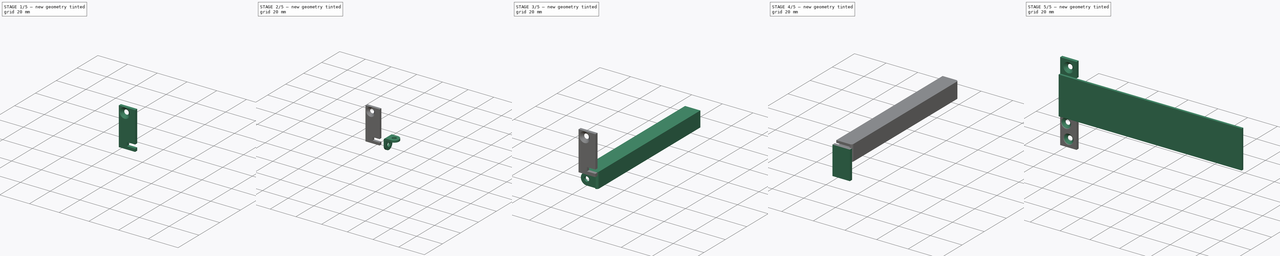
[diagram: build sequence overview — one tinted view per stage of 5, left to right]
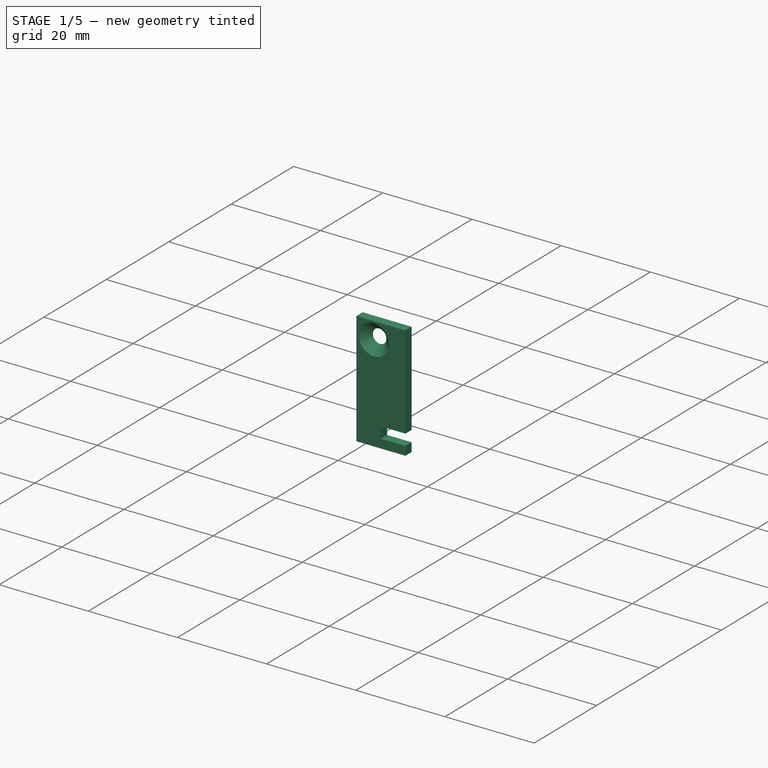
[diagram: stage 1 of 5 — iso view after this stage's code; geometry added in this stage tinted green]
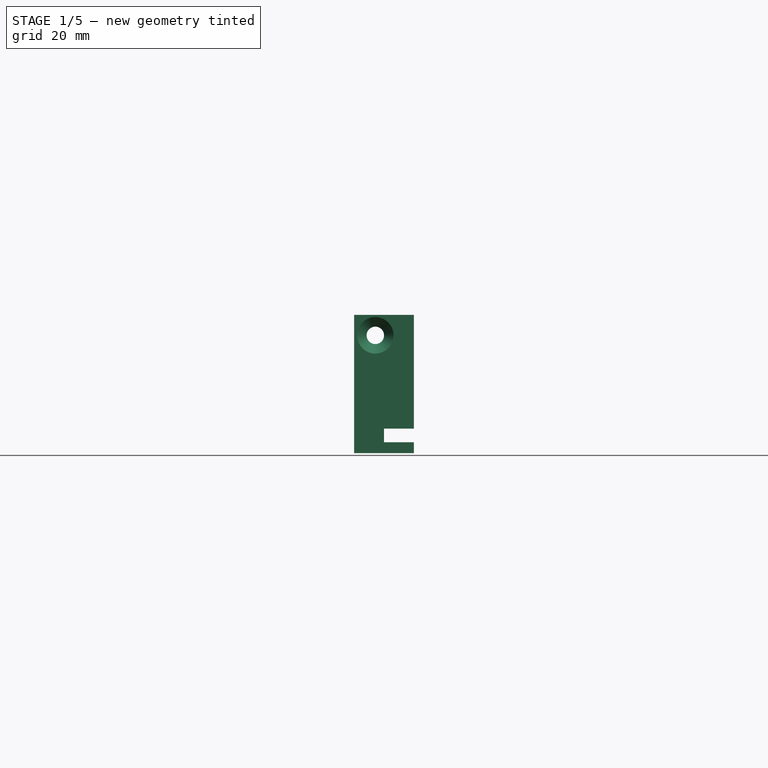
[diagram: stage 1 of 5 — front view after this stage's code; geometry added in this stage tinted green]
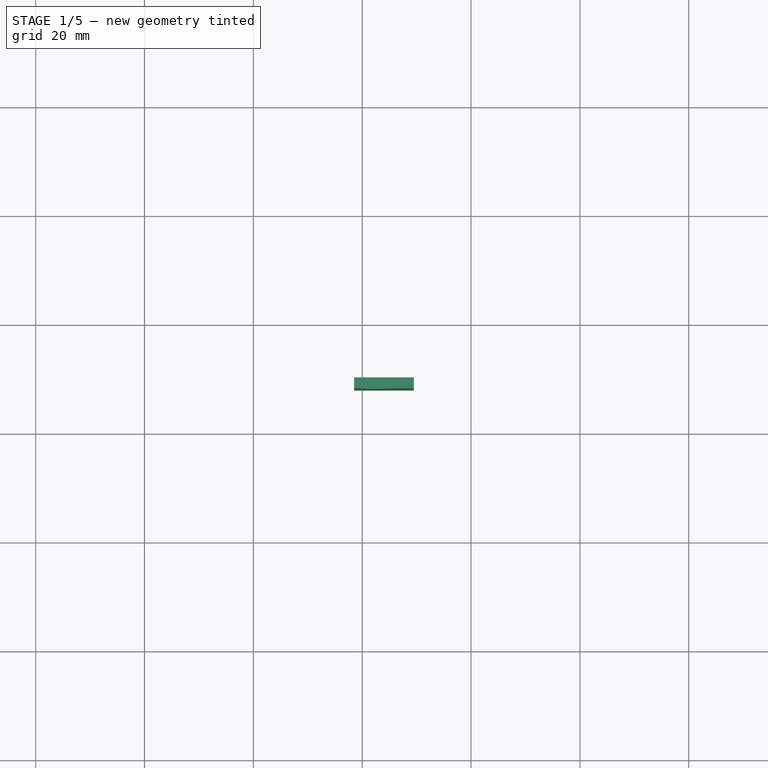
[diagram: stage 1 of 5 — top view after this stage's code; geometry added in this stage tinted green]
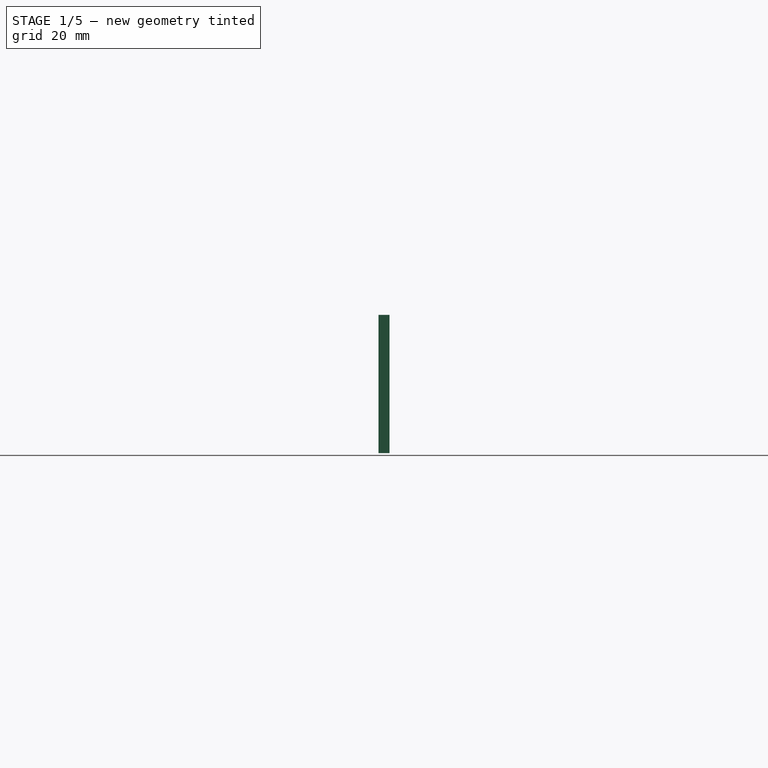
[diagram: stage 1 of 5 — right view after this stage's code; geometry added in this stage tinted green]
FCSTD DOCUMENT  (FreeCAD 1.1Rpre_43813.fc42 (Git))
Label: valhalla-MOD-enclosure
License: Creative Commons Attribution-ShareAlike 4.0
LicenseURL: https://creativecommons.org/licenses/by-sa/4.0/
objects: Sketcher::SketchObject×12, PartDesign::SubShapeBinder×12, PartDesign::Pad×9, App::Point×8, PartDesign::Body×8, PartDesign::Fillet×6, PartDesign::Hole×3, Part::DatumLine×1, PartDesign::PolarPattern×1, PartDesign::LinearPattern×1
note: 102 computed .brp shape members not serialized (recipe doc carries the construction recipe); baked Part::Feature solids carry a one-line shape summary decoded from their .brp

FEATURE [App::Point] Origin001
  Role = Origin
FEATURE [Sketcher::SketchObject] Sketch  label="PCBOutline"
  ArcFitTolerance = 1e-06
  AttachmentSupport = -> [Origin]
  ExternalTypes = [0]
  FullyConstrained = true
  MakeInternals = false
  MapMode = 5
  expr: Constraints[12] = .Constraints.Offset
  sketch-geometry (8):
    g0: LineSegment StartX=-50 StartY=50 StartZ=0 EndX=-50 EndY=-50 EndZ=0
    g1: LineSegment StartX=-50 StartY=-50 StartZ=0 EndX=50 EndY=-50 EndZ=0
    g2: LineSegment StartX=50 StartY=-50 StartZ=0 EndX=50 EndY=50 EndZ=0
    g3: LineSegment StartX=50 StartY=50 StartZ=0 EndX=-50 EndY=50 EndZ=0
    g4: Circle CenterX=-44.41 CenterY=44.41 CenterZ=0 NormalX=0 NormalY=0 NormalZ=1 AngleXU=0 Radius=1.6
    g5: Circle CenterX=44.41 CenterY=44.41 CenterZ=0 NormalX=0 NormalY=0 NormalZ=1 AngleXU=0 Radius=1.6
    g6: Circle CenterX=-44.41 CenterY=-44.41 CenterZ=0 NormalX=0 NormalY=0 NormalZ=1 AngleXU=0 Radius=1.6
    g7: Circle CenterX=44.41 CenterY=-44.41 CenterZ=0 NormalX=0 NormalY=0 NormalZ=1 AngleXU=0 Radius=1.6
  constraints (19):
    c: Coincident(g0,g1)
    c: Coincident(g1,g2)
    c: Coincident(g2,g3)
    c: Coincident(g3,g0)
    c: Vertical(g2)
    c: Horizontal(g1)
    c: DistanceX(g3,g3) = 100  'PCBSize'
    c: Equal(g0,g3)
    c: Symmetric(g0,g2,g-2)
    c: Symmetric(g0,g0,g-1)
    c: Diameter(g4) = 3.2
    c: DistanceX(g0,g4) = 5.59  'Offset'
    c: DistanceY(g4,g0) = 5.59
    c: Diameter(g5) = 3.2
    c: Symmetric(g4,g5,g-2)
    c: Diameter(g6) = 3.2
    c: Diameter(g7) = 3.2
    c: Symmetric(g6,g7,g-2)
    c: Symmetric(g7,g5,g-1)
FEATURE [PartDesign::Pad] Pad  label="PCBPad"
  Direction = (0,0,1)
  Length = 1.6
  Length2 = 10
  Profile = -> Sketch
  ReferenceAxis = -> Sketch [N_Axis]
  Refine = true
  SideType = 0
  Suppressed = false
  Type = 0
  Type2 = 0
FEATURE [PartDesign::Body] Body  label="PCB"
  AllowCompound = true
  Group = -> [Sketch,Pad]
  Origin = -> Origin
  Tip = -> Pad
FEATURE [App::Point] Origin003
  Role = Origin
FEATURE [PartDesign::SubShapeBinder] Binder  label="PCBReference"
  BindCopyOnChange = 0
  BindMode = 0
  ClaimChildren = false
  Context = -> Body001 [Binder.]
  Fuse = false
  MakeFace = true
  OffsetFill = false
  OffsetIntersection = false
  OffsetJoinType = 0
  OffsetOpenResult = false
  PartialLoad = false
  Refine = true
  Relative = true
  Support = -> [Body[Sketch.]]
  _Version = 2
FEATURE [Sketcher::SketchObject] Sketch001  label="CarrierOutline"
  ArcFitTolerance = 1e-06
  AttachmentSupport = -> [Origin002]
  ExternalGeometry = -> [Binder]
  ExternalTypes = [0,0,0,0,0,0,0]
  FullyConstrained = true
  MakeInternals = false
  MapMode = 5
  sketch-geometry (16):
    g0: ArcOfCircle CenterX=-44.41 CenterY=-44.41 CenterZ=0 NormalX=0 NormalY=0 NormalZ=1 AngleXU=0 Radius=3.81 StartAngle=4.71239 EndAngle=7.85398
    g1: LineSegment StartX=-44.41 StartY=-40.6 StartZ=0 EndX=-50.5 EndY=-40.6 EndZ=0
    g2: GeomPoint X=-50 Y=-40.6 Z=0
    g3: GeomPoint X=-50.5 Y=-48.22 Z=0
    g4: LineSegment StartX=-50.5 StartY=-40.6 StartZ=0 EndX=-50.5 EndY=0 EndZ=0
    g5: LineSegment StartX=-55.5 StartY=-50 StartZ=0 EndX=-55.5 EndY=0 EndZ=0
    g6: LineSegment StartX=-44.41 StartY=-48.22 StartZ=0 EndX=-50.5 EndY=-48.22 EndZ=0
    g7: LineSegment StartX=-50.5 StartY=-48.22 StartZ=0 EndX=-50.5 EndY=-50 EndZ=0
    g8: LineSegment StartX=-50.5 StartY=-50 StartZ=0 EndX=-55.5 EndY=-50 EndZ=0
    g9: LineSegment StartX=-55.5 StartY=50 StartZ=0 EndX=-55.5 EndY=0 EndZ=0
    g10: LineSegment StartX=-50.5 StartY=40.6 StartZ=0 EndX=-50.5 EndY=0 EndZ=0
    g11: LineSegment StartX=-50.5 StartY=50 StartZ=0 EndX=-55.5 EndY=50 EndZ=0
    g12: LineSegment StartX=-50.5 StartY=48.22 StartZ=0 EndX=-50.5 EndY=50 EndZ=0
    g13: LineSegment StartX=-44.41 StartY=48.22 StartZ=0 EndX=-50.5 EndY=48.22 EndZ=0
    g14: ArcOfCircle CenterX=-44.41 CenterY=44.41 CenterZ=0 NormalX=0 NormalY=0 NormalZ=1 AngleXU=0 Radius=3.81 StartAngle=4.71239 EndAngle=7.85398
    g15: LineSegment StartX=-44.41 StartY=40.6 StartZ=0 EndX=-50.5 EndY=40.6 EndZ=0
  constraints (42):
    c: Coincident(g0,g-3)
    c: Angle(g0) = 3.14159
    c: Vertical(g0,g0)
    c: Diameter(g0) = 7.62
    c: Coincident(g1,g0)
    c: Horizontal(g1)
    c: PointOnObject(g2,g1)
    c: PointOnObject(g2,g-6)
    c: DistanceX(g1,g2) = 0.5  'Clearance'
    c: Coincident(g4,g1)
    c: Vertical(g4)
    c: Coincident(g6,g0)
    c: Coincident(g6,g3)
    c: Horizontal(g6)
    c: Coincident(g7,g3)
    c: Coincident(g8,g7)
    c: Coincident(g5,g8)
    c: Tangent(g7,g4)
    c: DistanceX(g5,g3) = 5  'Width'
    c: Tangent(g-7,g8)
    c: PointOnObject(g5,g-1)
    c: Vertical(g5)
    c: PointOnObject(g4,g-1)
    c: Angle(g14) = 3.14159
    c: Diameter(g14) = 7.62
    c: Coincident(g15,g14)
    c: Horizontal(g15)
    c: Coincident(g10,g15)
    c: Coincident(g13,g14)
    c: Horizontal(g13)
    c: Coincident(g11,g12)
    c: Coincident(g9,g11)
    c: Tangent(g12,g10)
    c: Tangent(g9,g5)
    c: Tangent(g10,g4)
    c: Tangent(g11,g-8)
    c: Equal(g9,g5)
    c: Equal(g10,g4)
    c: Equal(g12,g7)
    c: Equal(g13,g15)
    c: Equal(g15,g1)
    c: Coincident(g14,g-9)
FEATURE [PartDesign::Pad] Pad001  label="CarrierPad"
  Direction = (0,0,1)
  Length = 1.5
  Length2 = 10
  Profile = -> Sketch001
  ReferenceAxis = -> Sketch001 [N_Axis]
  Refine = true
  Reversed = true
  SideType = 0
  Suppressed = false
  Type = 0
  Type2 = 0
FEATURE [App::Point] Origin007
  Role = Origin
FEATURE [PartDesign::SubShapeBinder] Binder003  label="CarrierReference001"
  BindCopyOnChange = 0
  BindMode = 0
  ClaimChildren = false
  Context = -> Body003 [Binder003.]
  Fuse = false
  MakeFace = true
  OffsetFill = false
  OffsetIntersection = false
  OffsetJoinType = 0
  OffsetOpenResult = false
  PartialLoad = false
  Refine = true
  Relative = true
  Support = -> [Body001]
  _Version = 2
FEATURE [PartDesign::SubShapeBinder] Binder004  label="PCBReference002"
  BindCopyOnChange = 0
  BindMode = 0
  ClaimChildren = false
  Context = -> Body003 [Binder004.]
  Fuse = false
  MakeFace = true
  OffsetFill = false
  OffsetIntersection = false
  OffsetJoinType = 0
  OffsetOpenResult = false
  PartialLoad = false
  Refine = true
  Relative = true
  Support = -> [Body]
  _Version = 2
FEATURE [Sketcher::SketchObject] Sketch003  label="MidSectionOutline"
  ArcFitTolerance = 1e-06
  AttachmentSupport = -> [Binder003]
  ExternalGeometry = -> [Binder003,Binder004]
  ExternalTypes = [0,0,0,0]
  FullyConstrained = true
  MakeInternals = false
  MapMode = 5
  Placement = pos=(0,-50,0) rot=(1,0,0;1.5708rad)
  expr: Constraints[17] = <<CarrierOutline>>.Constraints.Clearance
  expr: Constraints[18] = <<CarrierOutline>>.Constraints.Clearance
  expr: Constraints[19] = <<CarrierOutline>>.Constraints.Clearance
  expr: Constraints[24] = <<CarrierOutline>>.Constraints.Clearance
  sketch-geometry (9):
    g0: LineSegment StartX=-50.5 StartY=0.5 StartZ=0 EndX=-56 EndY=0.5 EndZ=0
    g1: LineSegment StartX=-56 StartY=0.5 StartZ=0 EndX=-56 EndY=-2 EndZ=0
    g2: LineSegment StartX=-56 StartY=-2 StartZ=0 EndX=-50.5 EndY=-2 EndZ=0
    g3: LineSegment StartX=-50.5 StartY=-2 StartZ=0 EndX=-50.5 EndY=-3.99 EndZ=0
    g4: LineSegment StartX=-50.5 StartY=-3.99 StartZ=0 EndX=-61.5 EndY=-3.99 EndZ=0
    g5: LineSegment StartX=-61.5 StartY=-3.99 StartZ=0 EndX=-61.5 EndY=21.41 EndZ=0
    g6: LineSegment StartX=-61.5 StartY=21.41 StartZ=0 EndX=-50.5 EndY=21.41 EndZ=0
    g7: LineSegment StartX=-50.5 StartY=21.41 StartZ=0 EndX=-50.5 EndY=0.5 EndZ=0
    g8: LineSegment [constr] StartX=-56 StartY=-2 StartZ=0 EndX=-61.5 EndY=-2 EndZ=0
  constraints (27):
    c: Horizontal(g0)
    c: Coincident(g0,g1)
    c: Vertical(g1)
    c: Coincident(g1,g2)
    c: Horizontal(g2)
    c: Coincident(g2,g3)
    c: Vertical(g3)
    c: Coincident(g3,g4)
    c: Horizontal(g4)
    c: Coincident(g4,g5)
    c: Vertical(g5)
    c: Coincident(g5,g6)
    c: Horizontal(g6)
    c: Coincident(g6,g7)
    c: Coincident(g7,g0)
    c: Vertical(g7)
    c: Equal(g0,g2)
    c: DistanceX(g0,g-5) = 0.5
    c: DistanceY(g-5,g0) = 0.5
    c: DistanceY(g2,g-4) = 0.5
    c: Coincident(g8,g1)
    c: Horizontal(g8)
    c: Equal(g8,g2)
    c: DistanceY(g-6,g6) = 19.81  'MWUTop'
    c: DistanceX(g0,g-6) = 0.5
    c: DistanceY(g3,g-6) = 5.59  'MWUBottom'
    c: PointOnObject(g8,g5)
FEATURE [PartDesign::Pad] Pad003  label="FrontRailMidPad"
  Direction = (0,-1,0)
  Length = 2
  Length2 = 10
  Profile = -> Sketch003
  ReferenceAxis = -> Sketch003 [N_Axis]
  Refine = true
  SideType = 0
  Suppressed = false
  Type = 0
  Type2 = 0
FEATURE [PartDesign::Body] Body005  label="FrontRailRight"
  AllowCompound = true
  Group = -> [Binder006,Sketch006,Binder007,Pad005,Sketch007,Hole001,Binder011]
  Origin = -> Origin010
  Tip = -> Hole001
FEATURE [Sketcher::SketchObject] Sketch011  label="MiddleHole"
  ArcFitTolerance = 1e-06
  AttachmentSupport = -> [Pad003]
  ExternalGeometry = -> [Pad003]
  ExternalTypes = [0,0]
  FullyConstrained = true
  MakeInternals = false
  MapMode = 5
  Placement = pos=(0,-52,1.54e-14) rot=(1,0,0;1.5708rad)
  sketch-geometry (1):
    g0: Circle CenterX=-57.59 CenterY=17.65 CenterZ=0 NormalX=0 NormalY=0 NormalZ=1 AngleXU=0 Radius=1.6
  constraints (3):
    c: Diameter(g0) = 3.2
    c: Distance(g0,g-3) = 3.76
    c: Distance(g0,g-4) = 3.91
FEATURE [PartDesign::Hole] Hole002
  BaseFeature = -> Pad003
  BaseProfileType = 7
  CustomThreadClearance = 0
  Depth = 25
  DepthType = 0
  Diameter = 3.2
  DrillForDepth = false
  DrillPoint = 1
  DrillPointAngle = 118
  HoleCutCountersinkAngle = 90
  HoleCutCustomValues = false
  HoleCutDepth = 3.35
  HoleCutDiameter = 6.7
  HoleCutType = 2
  ModelThread = false
  Profile = -> Sketch011
  Refine = true
  Suppressed = false
  Tapered = false
  TaperedAngle = 90
  ThreadClass = 0
  ThreadDepth = 25
  ThreadDepthType = 0
  ThreadDiameter = 3
  ThreadDirection = 0
  ThreadFit = 1
  ThreadSize = 9
  ThreadType = 1
  Threaded = false
  UseCustomThreadClearance = false
FEATURE [PartDesign::Body] Body003  label="FrontRailMid"
  AllowCompound = true
  Group = -> [Binder003,Sketch003,Binder004,Pad003,Sketch011,Hole002]
  Origin = -> Origin006
  Tip = -> Hole002
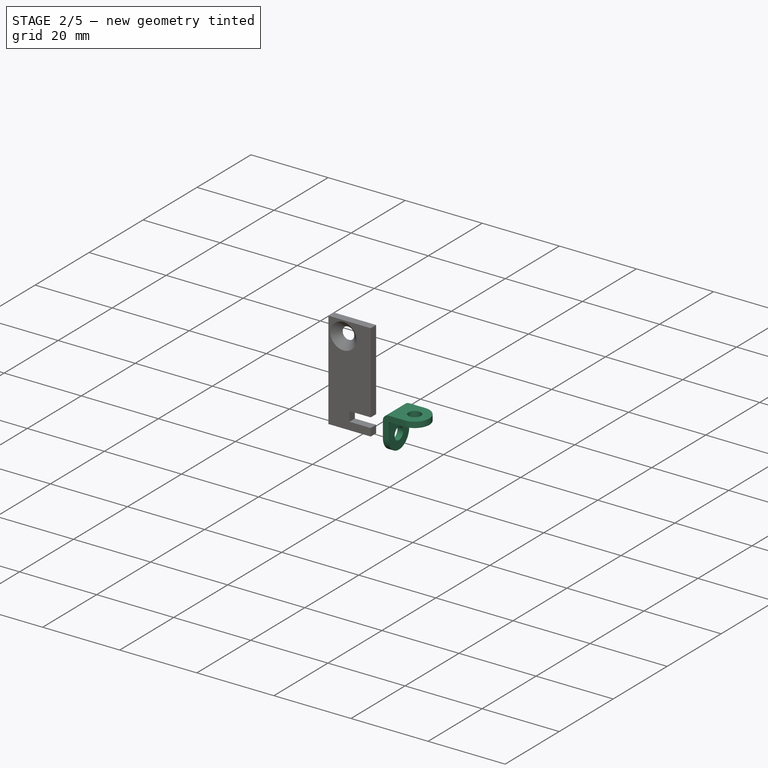
[diagram: stage 2 of 5 — iso view after this stage's code; geometry added in this stage tinted green]
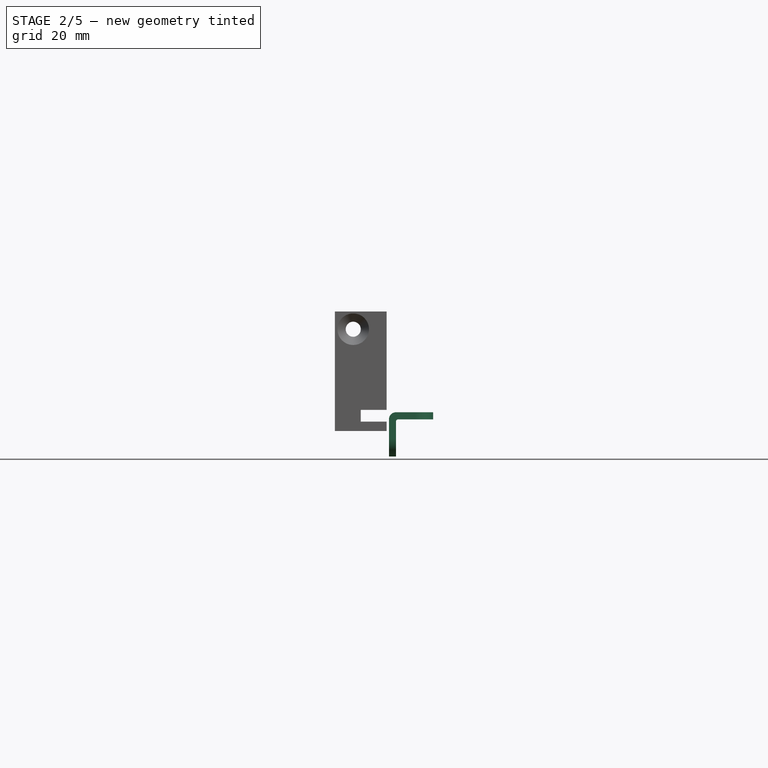
[diagram: stage 2 of 5 — front view after this stage's code; geometry added in this stage tinted green]
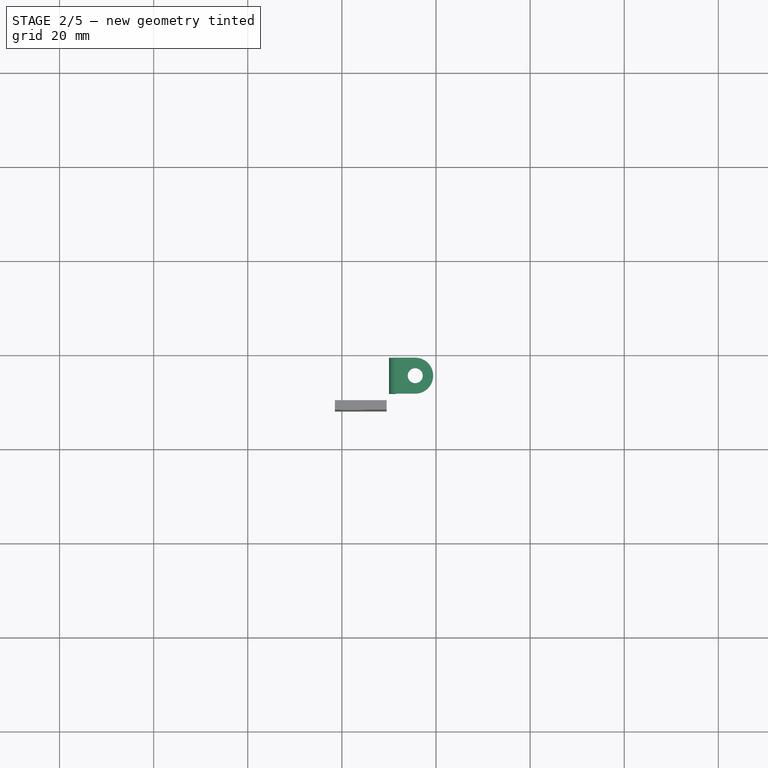
[diagram: stage 2 of 5 — top view after this stage's code; geometry added in this stage tinted green]
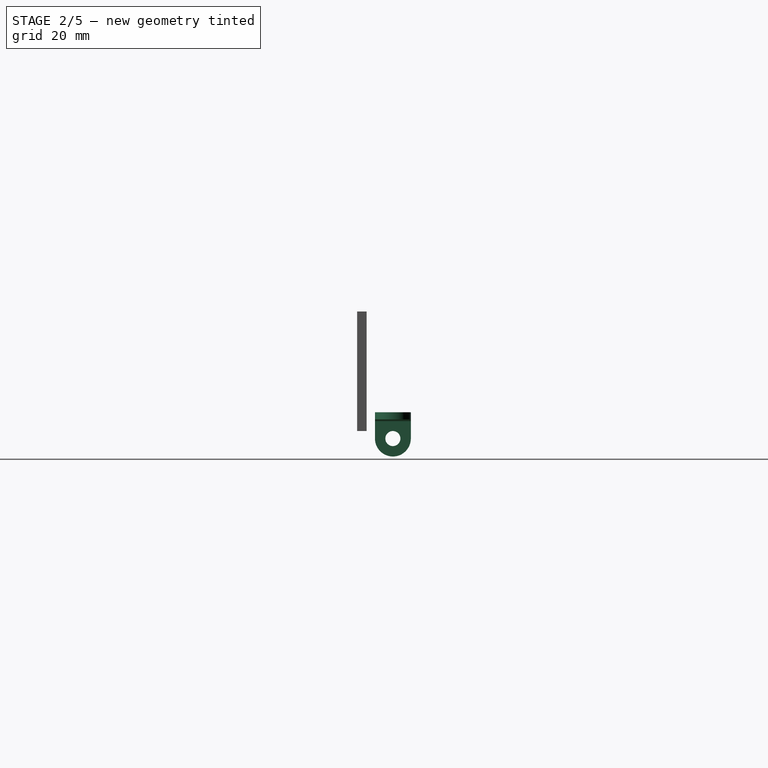
[diagram: stage 2 of 5 — right view after this stage's code; geometry added in this stage tinted green]
FEATURE [PartDesign::Body] Body001  label="Carrier"
  AllowCompound = true
  Group = -> [Binder,Sketch001,Pad001]
  Origin = -> Origin002
  Tip = -> Pad001
FEATURE [App::Point] Origin005
  Role = Origin
FEATURE [PartDesign::SubShapeBinder] Binder001  label="CarrierReference"
  BindCopyOnChange = 0
  BindMode = 0
  ClaimChildren = false
  Context = -> Body002 [Binder001.]
  Fuse = false
  MakeFace = true
  OffsetFill = false
  OffsetIntersection = false
  OffsetJoinType = 0
  OffsetOpenResult = false
  PartialLoad = false
  Refine = true
  Relative = true
  Support = -> [Body001]
  _Version = 2
FEATURE [PartDesign::SubShapeBinder] Binder002  label="PCBReference001"
  BindCopyOnChange = 0
  BindMode = 0
  ClaimChildren = false
  Context = -> Body002 [Binder002.]
  Fuse = false
  MakeFace = true
  OffsetFill = false
  OffsetIntersection = false
  OffsetJoinType = 0
  OffsetOpenResult = false
  PartialLoad = false
  Refine = true
  Relative = true
  Support = -> [Body]
  _Version = 2
FEATURE [Sketcher::SketchObject] Sketch002  label="SideOutline"
  ArcFitTolerance = 1e-06
  AttachmentSupport = -> [Origin004]
  ExternalGeometry = -> [Binder001,Binder002]
  ExternalTypes = [0,0,0]
  FullyConstrained = true
  MakeInternals = false
  MapMode = 5
  sketch-geometry (3):
    g0: LineSegment StartX=-50 StartY=-40.6 StartZ=0 EndX=-50 EndY=-48.22 EndZ=0
    g1: LineSegment StartX=-44.41 StartY=-48.22 StartZ=0 EndX=-50 EndY=-48.22 EndZ=0
    g2: LineSegment StartX=-50 StartY=-40.6 StartZ=0 EndX=-44.41 EndY=-40.6 EndZ=0
  constraints (8):
    c: Coincident(g1,g-4)
    c: Coincident(g1,g0)
    c: Horizontal(g1)
    c: Coincident(g2,g0)
    c: Coincident(g2,g-4)
    c: Horizontal(g2)
    c: DistanceX(g-5,g-5) = 0
    c: Tangent(g0,g-5)
FEATURE [PartDesign::Pad] Pad002  label="SidePad"
  Direction = (0,0,1)
  Length = 1.5
  Length2 = 10
  Profile = -> Sketch002
  ReferenceAxis = -> Sketch002 [N_Axis]
  Refine = true
  Reversed = true
  SideType = 0
  Suppressed = false
  Type = 0
  Type2 = 0
  expr: Length = <<CarrierPad>>.Length
FEATURE [Part::DatumLine] DatumLine  label="SideDatumLine"
  AttacherType = Attacher::AttachEngineLine
  AttachmentOffset = pos=(0.75,-0.75,0) rot=(0,0,1;0rad)
  AttachmentSupport = -> [Pad002]
  MapMode = 29
  Placement = pos=(-49.25,-2e-16,-0.75) rot=(1,0,0;1.5708rad)
  expr: .AttachmentOffset.Base.x = <<CarrierPad>>.Length / 2
  expr: .AttachmentOffset.Base.y = -<<CarrierPad>>.Length / 2
FEATURE [PartDesign::PolarPattern] PolarPattern  label="RightAnglePattern"
  Angle = 90
  Axis = -> DatumLine
  BaseFeature = -> Pad002
  Mode = 0
  Occurrences = 2
  Offset = 120
  Refine = true
  Reversed = true
  SpacingPattern = [0]
  Spacings = [-1]
  Suppressed = false
  TransformMode = 1
FEATURE [PartDesign::Body] Body006  label="UIPanel"
  AllowCompound = true
  Group = -> [Binder008,Sketch008,Pad006]
  Origin = -> Origin012
  Tip = -> Pad006
FEATURE [PartDesign::Fillet] Fillet  label="OuterFillet"
  Base = -> PolarPattern [Edge22]
  BaseFeature = -> PolarPattern
  Radius = 1.5
  Refine = true
  SupportTransform = false
  Suppressed = false
  UseAllEdges = false
FEATURE [PartDesign::Fillet] Fillet001  label="InnerFillet"
  Base = -> Fillet [Edge25]
  BaseFeature = -> Fillet
  Radius = 0.5
  Refine = true
  SupportTransform = false
  Suppressed = false
  UseAllEdges = false
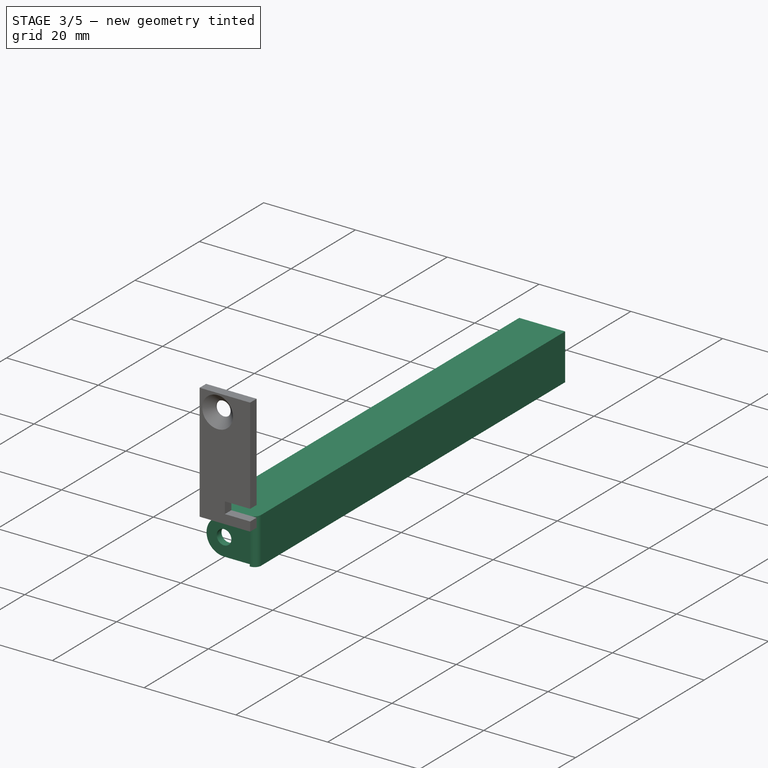
[diagram: stage 3 of 5 — iso view after this stage's code; geometry added in this stage tinted green]
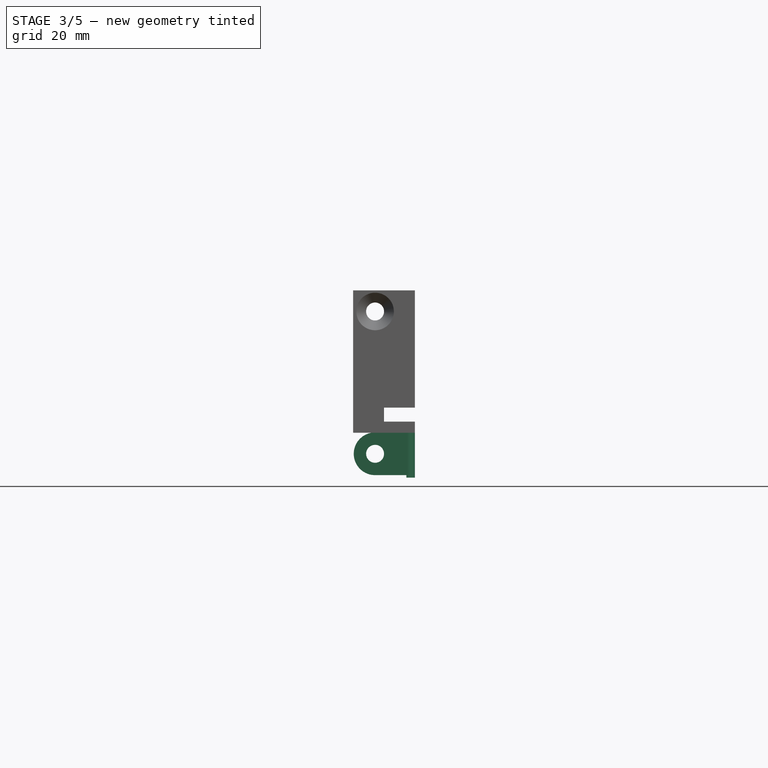
[diagram: stage 3 of 5 — front view after this stage's code; geometry added in this stage tinted green]
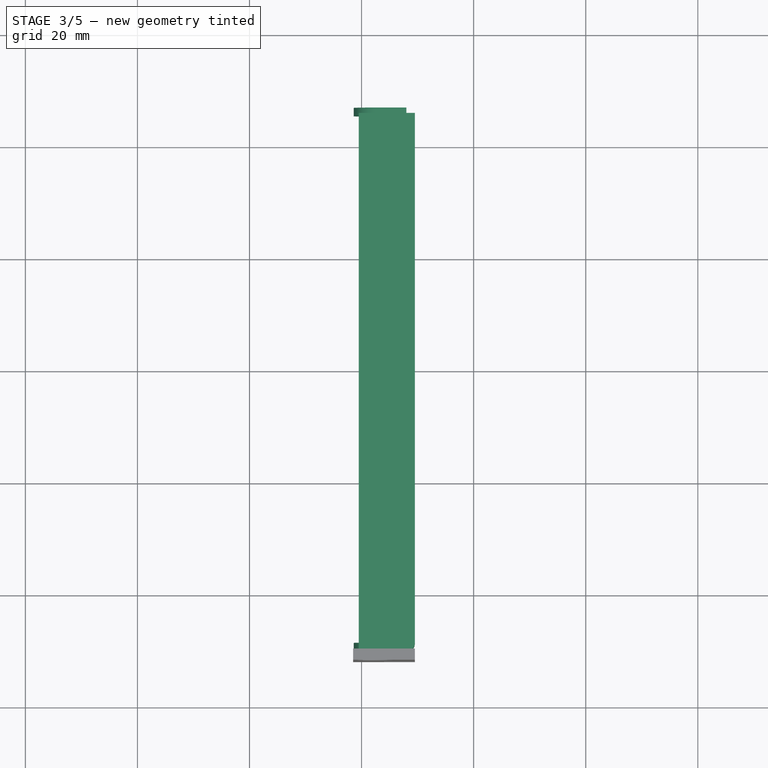
[diagram: stage 3 of 5 — top view after this stage's code; geometry added in this stage tinted green]
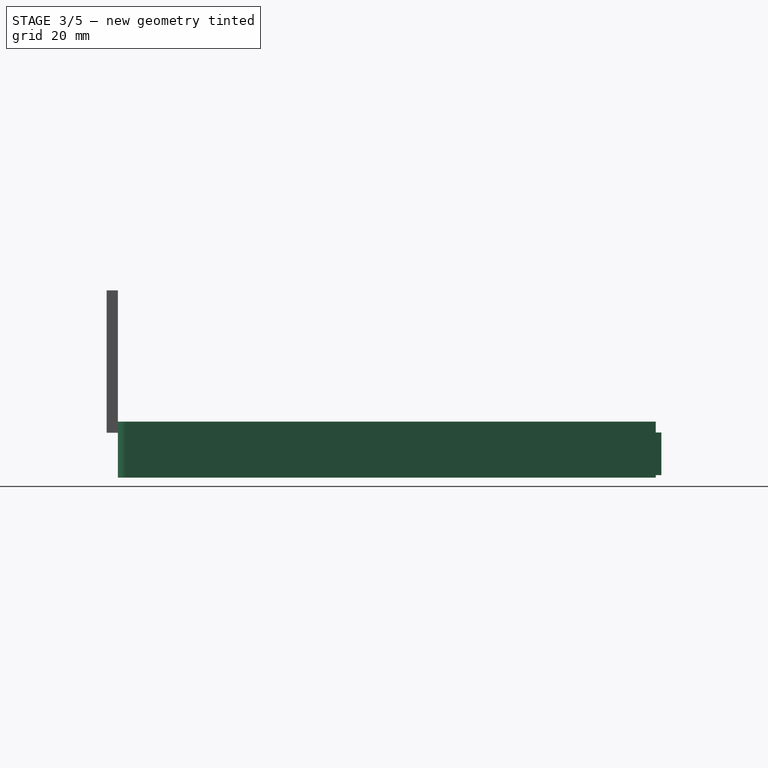
[diagram: stage 3 of 5 — right view after this stage's code; geometry added in this stage tinted green]
FEATURE [PartDesign::Body] Body002  label="RightAngle"
  AllowCompound = true
  Group = -> [Binder001,Binder002,Sketch002,Pad002,DatumLine,PolarPattern,Fillet,Fillet001]
  Origin = -> Origin004
  Tip = -> Fillet001
FEATURE [App::Point] Origin015
  Role = Origin
FEATURE [PartDesign::SubShapeBinder] Binder009  label="CarrierReference003"
  BindCopyOnChange = 0
  BindMode = 0
  ClaimChildren = false
  Context = -> Body007 [Binder009.]
  Fuse = false
  MakeFace = true
  OffsetFill = false
  OffsetIntersection = false
  OffsetJoinType = 0
  OffsetOpenResult = false
  PartialLoad = false
  Refine = true
  Relative = true
  Support = -> [Body001]
  _Version = 2
FEATURE [PartDesign::SubShapeBinder] Binder010  label="RightAngleReference"
  BindCopyOnChange = 0
  BindMode = 0
  ClaimChildren = false
  Context = -> Body007 [Binder010.]
  Fuse = false
  MakeFace = true
  OffsetFill = false
  OffsetIntersection = false
  OffsetJoinType = 0
  OffsetOpenResult = false
  PartialLoad = false
  Refine = true
  Relative = true
  Support = -> [Body002]
  _Version = 2
FEATURE [Sketcher::SketchObject] Sketch009  label="SupportRailOutline"
  ArcFitTolerance = 1e-06
  AttachmentSupport = -> [Binder009]
  ExternalGeometry = -> [Binder009,Binder010]
  ExternalTypes = [0,0]
  FullyConstrained = true
  MakeInternals = false
  MapMode = 5
  Placement = pos=(0,-50,0) rot=(1,0,0;1.5708rad)
  expr: Constraints[12] = <<CarrierOutline>>.Constraints.Clearance
  expr: Constraints[13] = <<CarrierOutline>>.Constraints.Clearance
  expr: Constraints[15] = <<CarrierPad>>.Length
  sketch-geometry (6):
    g0: LineSegment StartX=-60.5 StartY=-2 StartZ=0 EndX=-50.5 EndY=-2 EndZ=0
    g1: LineSegment StartX=-50.5 StartY=-2 StartZ=0 EndX=-50.5 EndY=-12 EndZ=0
    g2: LineSegment StartX=-50.5 StartY=-12 StartZ=0 EndX=-52 EndY=-12 EndZ=0
    g3: LineSegment StartX=-52 StartY=-12 StartZ=0 EndX=-52 EndY=-3.5 EndZ=0
    g4: LineSegment StartX=-52 StartY=-3.5 StartZ=0 EndX=-60.5 EndY=-3.5 EndZ=0
    g5: LineSegment StartX=-60.5 StartY=-3.5 StartZ=0 EndX=-60.5 EndY=-2 EndZ=0
  constraints (18):
    c: Horizontal(g0)
    c: Coincident(g0,g1)
    c: Vertical(g1)
    c: Coincident(g1,g2)
    c: Horizontal(g2)
    c: Coincident(g2,g3)
    c: Vertical(g3)
    c: Coincident(g3,g4)
    c: Horizontal(g4)
    c: Coincident(g4,g5)
    c: Coincident(g5,g0)
    c: Vertical(g5)
    c: DistanceY(g0,g-3) = 0.5
    c: DistanceX(g0,g-4) = 0.5
    c: Equal(g5,g2)
    c: DistanceY(g4,g0) = 1.5
    c: Equal(g0,g1)
    c: DistanceY(g1,g0) = 10  'Width'
FEATURE [PartDesign::Pad] Pad007  label="SupportRailPad"
  Direction = (0,-1,0)
  Length = 96
  Length2 = 10
  Profile = -> Sketch009
  ReferenceAxis = -> Sketch009 [N_Axis]
  Refine = true
  Reversed = true
  SideType = 0
  Suppressed = false
  Type = 0
  Type2 = 0
  expr: Length = <<PCBOutline>>.Constraints.PCBSize - 2 * <<FrontRailMidPad>>.Length
FEATURE [Sketcher::SketchObject] Sketch010  label="EarOutline"
  ArcFitTolerance = 1e-06
  AttachmentSupport = -> [Pad007]
  ExternalGeometry = -> [Pad007]
  ExternalTypes = [0]
  FullyConstrained = true
  MakeInternals = false
  MapMode = 5
  Placement = pos=(0,-50,0) rot=(1,0,0;1.5708rad)
  sketch-geometry (7):
    g0: GeomPoint X=-52 Y=-7.75 Z=0
    g1: LineSegment [constr] StartX=-52 StartY=-7.75 StartZ=0 EndX=-57.59 EndY=-7.75 EndZ=0
    g2: Circle CenterX=-57.59 CenterY=-7.75 CenterZ=0 NormalX=0 NormalY=0 NormalZ=1 AngleXU=0 Radius=1.6
    g3: ArcOfCircle CenterX=-57.59 CenterY=-7.75 CenterZ=0 NormalX=0 NormalY=0 NormalZ=1 AngleXU=0 Radius=3.81 StartAngle=1.5708 EndAngle=4.71239
    g4: LineSegment StartX=-57.59 StartY=-11.56 StartZ=0 EndX=-52 EndY=-11.56 EndZ=0
    g5: LineSegment StartX=-57.59 StartY=-3.94 StartZ=0 EndX=-52 EndY=-3.94 EndZ=0
    g6: LineSegment StartX=-52 StartY=-3.94 StartZ=0 EndX=-52 EndY=-11.56 EndZ=0
  constraints (19):
    c: Symmetric(g-3,g-3,g0)
    c: Coincident(g1,g0)
    c: Horizontal(g1)
    c: DistanceX(g-3,g-3) = 0
    c: DistanceX(g1,g0) = 5.59
    c: Diameter(g2) = 3.2
    c: Coincident(g2,g1)
    c: Radius(g3) = 3.81
    c: Angle(g3) = 3.14159
    c: Coincident(g3,g1)
    c: Coincident(g4,g3)
    c: PointOnObject(g4,g-3)
    c: Horizontal(g4)
    c: Coincident(g5,g3)
    c: PointOnObject(g5,g-3)
    c: Horizontal(g5)
    c: Equal(g5,g4)
    c: Coincident(g6,g5)
    c: Coincident(g6,g4)
FEATURE [PartDesign::Pad] Pad008  label="EarPad"
  BaseFeature = -> Pad007
  Direction = (0,-1,2e-16)
  Length = 1.5
  Length2 = 10
  Profile = -> Sketch010
  ReferenceAxis = -> Sketch010 [N_Axis]
  Refine = true
  Reversed = true
  SideType = 0
  Suppressed = false
  Type = 0
  Type2 = 0
  expr: Length = <<CarrierPad>>.Length
FEATURE [PartDesign::LinearPattern] LinearPattern  label="EarPattern"
  BaseFeature = -> Pad008
  Direction = -> Sketch010 [N_Axis]
  Direction2 = -> Sketch010 [V_Axis]
  Length = 95.5
  Length2 = 100
  Mode = 0
  Mode2 = 0
  Occurrences = 2
  Occurrences2 = 1
  Offset = 95.5
  Offset2 = 100
  Originals = -> [Pad008]
  Refine = true
  Reversed = true
  Reversed2 = false
  SpacingPattern = [0]
  SpacingPattern2 = [0]
  Spacings = [-1]
  Suppressed = false
  TransformMode = 0
  expr: Length = <<PCBOutline>>.Constraints.PCBSize - 3 * <<CarrierPad>>.Length
FEATURE [PartDesign::Fillet] Fillet002  label="LeftOuterFillet"
  Base = -> LinearPattern [Edge9]
  BaseFeature = -> LinearPattern
  Radius = 1.4
  Refine = true
  SupportTransform = false
  Suppressed = false
  UseAllEdges = false
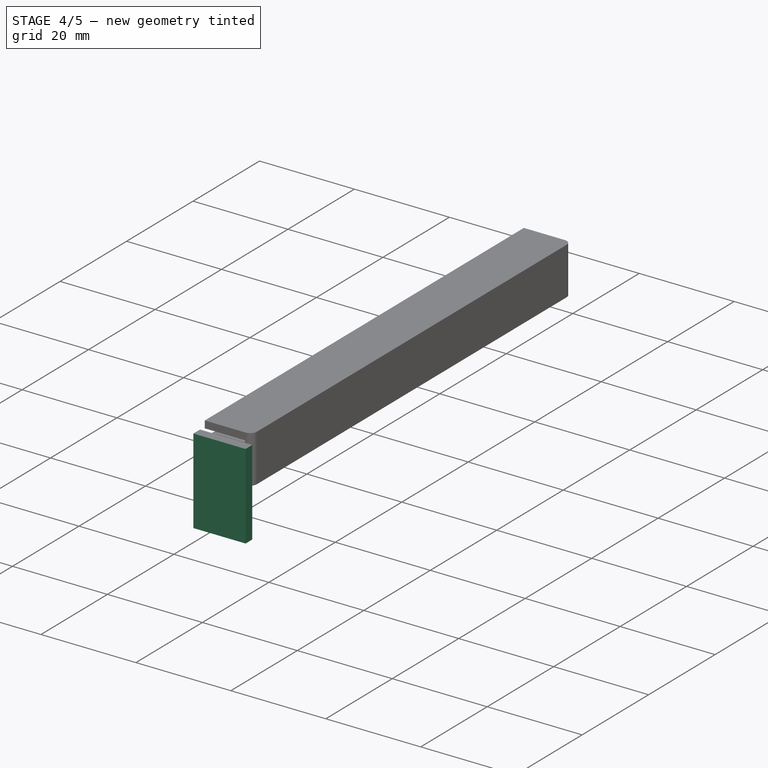
[diagram: stage 4 of 5 — iso view after this stage's code; geometry added in this stage tinted green]
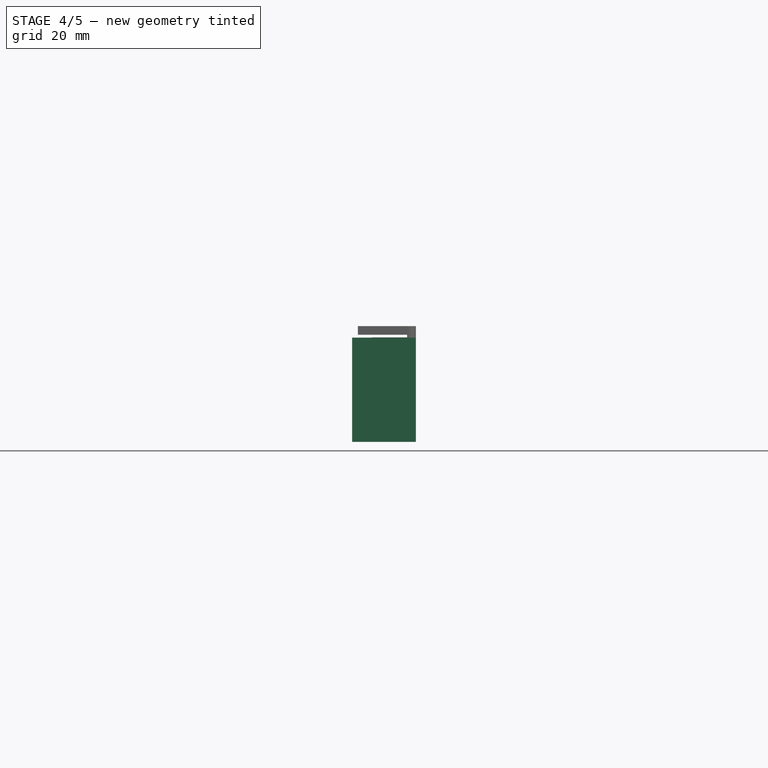
[diagram: stage 4 of 5 — front view after this stage's code; geometry added in this stage tinted green]
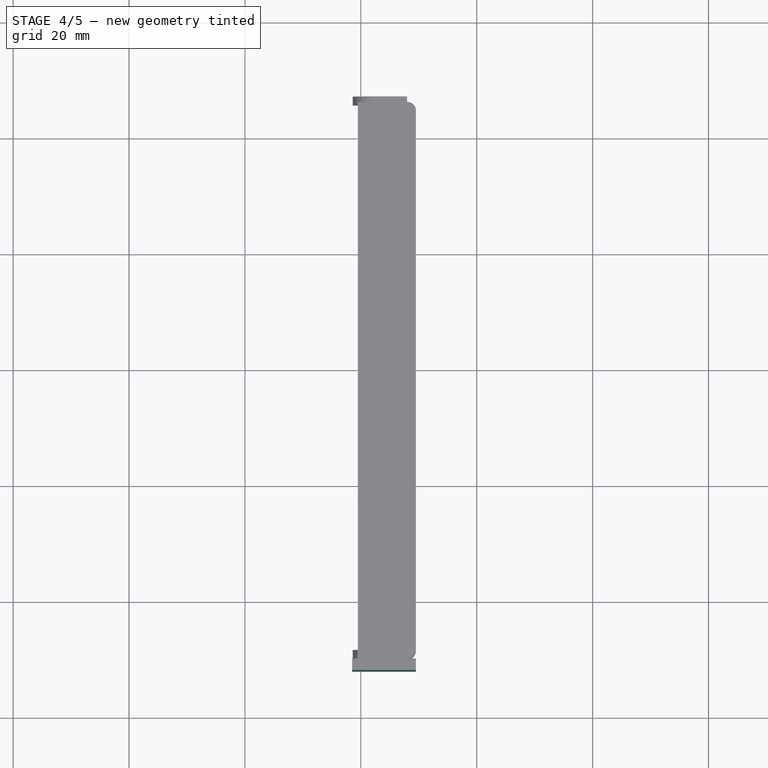
[diagram: stage 4 of 5 — top view after this stage's code; geometry added in this stage tinted green]
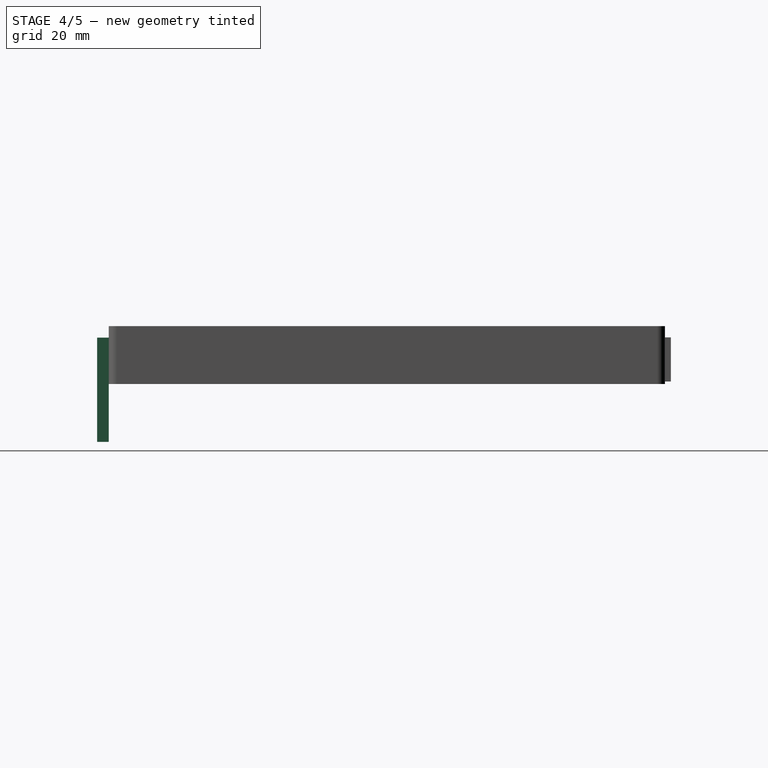
[diagram: stage 4 of 5 — right view after this stage's code; geometry added in this stage tinted green]
FEATURE [PartDesign::Body] Body004  label="FrontRaidLeft"
  AllowCompound = true
  Group = -> [Binder005,Sketch004,Pad004,Sketch005,Hole]
  Origin = -> Origin008
  Tip = -> Hole
FEATURE [App::Point] Origin011
  Role = Origin
FEATURE [PartDesign::SubShapeBinder] Binder006  label="CarrierReference002"
  BindCopyOnChange = 0
  BindMode = 0
  ClaimChildren = false
  Context = -> Body005 [Binder006.]
  Fuse = false
  MakeFace = true
  OffsetFill = false
  OffsetIntersection = false
  OffsetJoinType = 0
  OffsetOpenResult = false
  PartialLoad = false
  Refine = true
  Relative = true
  Support = -> [Body001]
  _Version = 2
FEATURE [PartDesign::SubShapeBinder] Binder007  label="MidReference001"
  BindCopyOnChange = 0
  BindMode = 0
  ClaimChildren = false
  Context = -> Body005 [Binder007.]
  Fuse = false
  MakeFace = true
  OffsetFill = false
  OffsetIntersection = false
  OffsetJoinType = 0
  OffsetOpenResult = false
  PartialLoad = false
  Refine = true
  Relative = true
  Support = -> [Body003]
  _Version = 2
FEATURE [Sketcher::SketchObject] Sketch006  label="RightEndOutline"
  ArcFitTolerance = 1e-06
  AttachmentSupport = -> [Binder006]
  ExternalGeometry = -> [Binder007]
  ExternalTypes = [0]
  FullyConstrained = true
  MakeInternals = false
  MapMode = 5
  Placement = pos=(0,-50,0) rot=(1,0,0;1.5708rad)
  expr: Constraints[8] = <<LeftEndOutline>>.Constraints.Ear
  sketch-geometry (4):
    g0: LineSegment StartX=-61.5 StartY=-3.99 StartZ=0 EndX=-61.5 EndY=-21.99 EndZ=0
    g1: LineSegment StartX=-61.5 StartY=-21.99 StartZ=0 EndX=-50.5 EndY=-21.99 EndZ=0
    g2: LineSegment StartX=-50.5 StartY=-21.99 StartZ=0 EndX=-50.5 EndY=-3.99 EndZ=0
    g3: GeomPoint X=-50.5 Y=-11.99 Z=0
  constraints (10):
    c: Coincident(g-3,g0)
    c: Vertical(g0)
    c: Coincident(g0,g1)
    c: Horizontal(g1)
    c: Coincident(g1,g2)
    c: Coincident(g2,g-3)
    c: Vertical(g2)
    c: PointOnObject(g3,g2)
    c: DistanceY(g1,g3) = 10
    c: DistanceY(g3,g2) = 8  'CTMAH'
FEATURE [PartDesign::Pad] Pad005  label="FrontRailRigthPad"
  Direction = (0,-1,2e-16)
  Length = 2
  Length2 = 10
  Profile = -> Sketch006
  ReferenceAxis = -> Sketch006 [N_Axis]
  Refine = true
  SideType = 0
  Suppressed = false
  Type = 0
  Type2 = 0
  expr: Length = <<FrontRailMidPad>>.Length
FEATURE [PartDesign::Fillet] Fillet003  label="LeftInnerFillet"
  Base = -> Fillet002 [Edge29]
  BaseFeature = -> Fillet002
  Radius = 0.5
  Refine = true
  SupportTransform = false
  Suppressed = false
  UseAllEdges = false
FEATURE [PartDesign::Fillet] Fillet004  label="RightOuterFillet"
  Base = -> Fillet003 [Edge34]
  BaseFeature = -> Fillet003
  Radius = 1.4
  Refine = true
  SupportTransform = false
  Suppressed = false
  UseAllEdges = false
FEATURE [PartDesign::Fillet] Fillet005  label="RightInnerFillet"
  Base = -> Fillet004 [Edge32]
  BaseFeature = -> Fillet004
  Radius = 0.5
  Refine = true
  SupportTransform = false
  Suppressed = false
  UseAllEdges = false
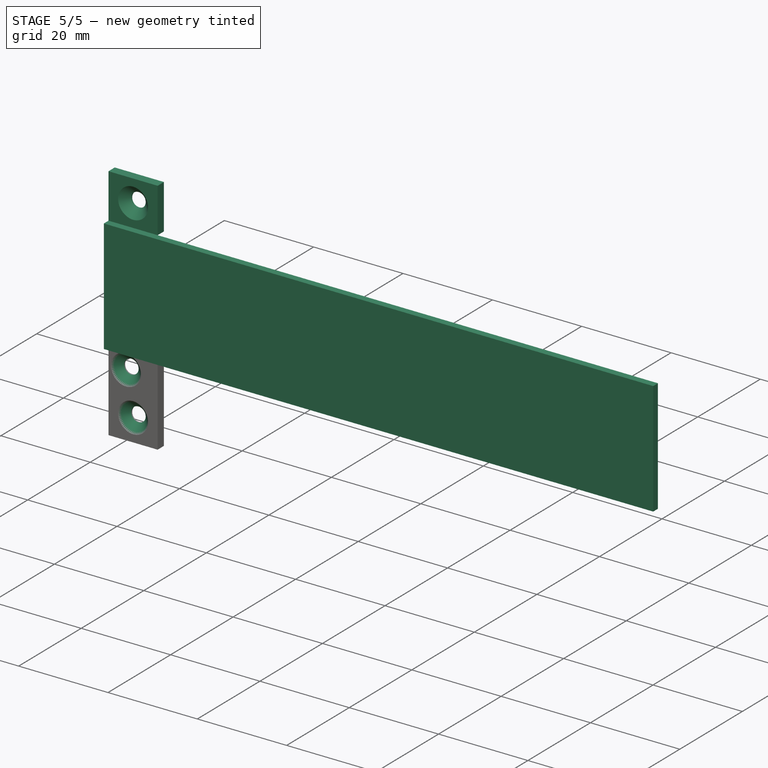
[diagram: stage 5 of 5 — iso view after this stage's code; geometry added in this stage tinted green]
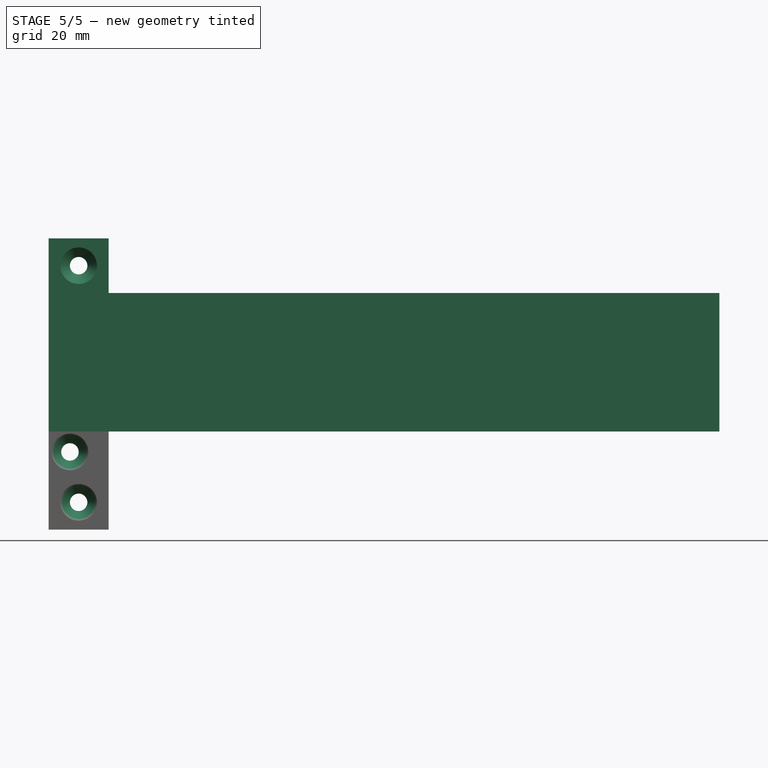
[diagram: stage 5 of 5 — front view after this stage's code; geometry added in this stage tinted green]
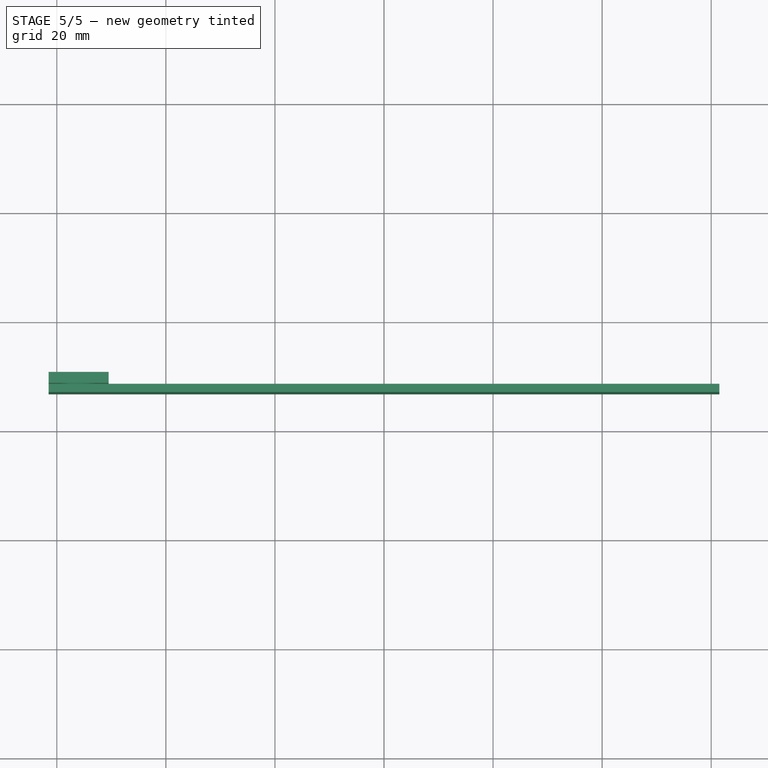
[diagram: stage 5 of 5 — top view after this stage's code; geometry added in this stage tinted green]
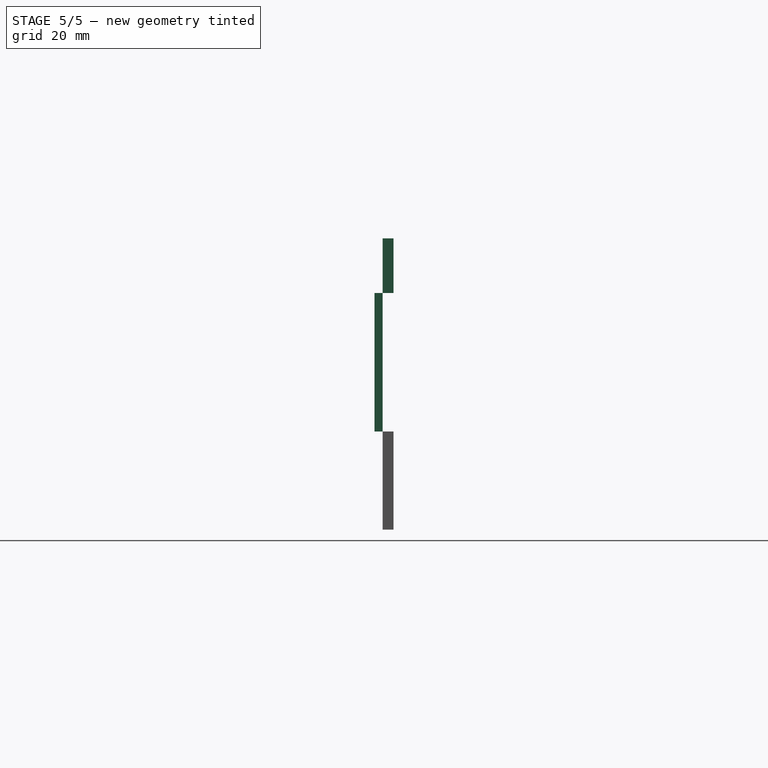
[diagram: stage 5 of 5 — right view after this stage's code; geometry added in this stage tinted green]
FEATURE [App::Point] Origin009
  Role = Origin
FEATURE [PartDesign::SubShapeBinder] Binder005  label="MidReference"
  BindCopyOnChange = 0
  BindMode = 0
  ClaimChildren = false
  Context = -> Body004 [Binder005.]
  Fuse = false
  MakeFace = true
  OffsetFill = false
  OffsetIntersection = false
  OffsetJoinType = 0
  OffsetOpenResult = false
  PartialLoad = false
  Refine = true
  Relative = true
  Support = -> [Body003]
  _Version = 2
FEATURE [Sketcher::SketchObject] Sketch004  label="LeftEndOutline"
  ArcFitTolerance = 1e-06
  AttachmentSupport = -> [Binder005]
  ExternalGeometry = -> [Binder005]
  ExternalTypes = [0]
  FullyConstrained = true
  MakeInternals = false
  MapMode = 5
  Placement = pos=(0,-50,1.48e-14) rot=(0,0.707107,0.707107;3.14159rad)
  sketch-geometry (3):
    g0: LineSegment StartX=50.5 StartY=21.41 StartZ=0 EndX=50.5 EndY=31.41 EndZ=0
    g1: LineSegment StartX=50.5 StartY=31.41 StartZ=0 EndX=61.5 EndY=31.41 EndZ=0
    g2: LineSegment StartX=61.5 StartY=31.41 StartZ=0 EndX=61.5 EndY=21.41 EndZ=0
  constraints (8):
    c: Coincident(g-3,g0)
    c: Vertical(g0)
    c: Coincident(g0,g1)
    c: Horizontal(g1)
    c: Coincident(g1,g2)
    c: Coincident(g2,g-3)
    c: Vertical(g2)
    c: DistanceY(g2,g1) = 10  'Ear'
FEATURE [PartDesign::Pad] Pad004  label="FrontRailLeftPad"
  Direction = (0,1,-2e-16)
  Length = 2
  Length2 = 10
  Profile = -> Sketch004
  ReferenceAxis = -> Sketch004 [N_Axis]
  Refine = true
  Reversed = true
  SideType = 0
  Suppressed = false
  Type = 0
  Type2 = 0
  expr: Length = <<FrontRailMidPad>>.Length
FEATURE [Sketcher::SketchObject] Sketch005  label="LeftEndHole"
  ArcFitTolerance = 1e-06
  AttachmentSupport = -> [Pad004]
  ExternalGeometry = -> [Pad004]
  ExternalTypes = [0,0]
  FullyConstrained = true
  MakeInternals = false
  MapMode = 5
  Placement = pos=(0,-52,0) rot=(1,0,0;1.5708rad)
  sketch-geometry (4):
    g0: GeomPoint [constr] X=-61.5 Y=26.41 Z=0
    g1: GeomPoint [constr] X=-50.5 Y=26.41 Z=0
    g2: LineSegment [constr] StartX=-61.5 StartY=26.41 StartZ=0 EndX=-50.5 EndY=26.41 EndZ=0
    g3: GeomPoint X=-56 Y=26.41 Z=0
  constraints (5):
    c: Symmetric(g-3,g-3,g0)
    c: Symmetric(g-4,g-4,g1)
    c: Coincident(g2,g0)
    c: Coincident(g2,g1)
    c: Symmetric(g2,g2,g3)
FEATURE [PartDesign::Hole] Hole
  BaseFeature = -> Pad004
  BaseProfileType = 7
  CustomThreadClearance = 0
  Depth = 30.1819
  DepthType = 1
  Diameter = 3.2
  DrillForDepth = false
  DrillPoint = 1
  DrillPointAngle = 118
  HoleCutCountersinkAngle = 90
  HoleCutCustomValues = false
  HoleCutDepth = 3.35
  HoleCutDiameter = 6.7
  HoleCutType = 2
  ModelThread = false
  Profile = -> Sketch005
  Refine = true
  Suppressed = false
  Tapered = false
  TaperedAngle = 90
  ThreadClass = 0
  ThreadDepth = 30.1819
  ThreadDepthType = 0
  ThreadDiameter = 3
  ThreadDirection = 0
  ThreadFit = 1
  ThreadSize = 9
  ThreadType = 1
  Threaded = false
  UseCustomThreadClearance = false
FEATURE [App::Point] Origin013
  Role = Origin
FEATURE [PartDesign::SubShapeBinder] Binder008  label="MidReference002"
  BindCopyOnChange = 0
  BindMode = 0
  ClaimChildren = false
  Context = -> Body006 [Binder008.]
  Fuse = false
  MakeFace = true
  OffsetFill = false
  OffsetIntersection = false
  OffsetJoinType = 0
  OffsetOpenResult = false
  PartialLoad = false
  Refine = true
  Relative = true
  Support = -> [Body003]
  _Version = 2
FEATURE [Sketcher::SketchObject] Sketch008  label="UIPanelOutline"
  ArcFitTolerance = 1e-06
  AttachmentSupport = -> [Binder008]
  ExternalGeometry = -> [Binder008]
  ExternalTypes = [0,0]
  FullyConstrained = true
  MakeInternals = false
  MapMode = 5
  Placement = pos=(0,-52,1.54e-14) rot=(1,0,0;1.5708rad)
  sketch-geometry (5):
    g0: LineSegment StartX=-61.5 StartY=21.41 StartZ=0 EndX=0 EndY=21.41 EndZ=0
    g1: LineSegment StartX=-61.5 StartY=-3.99 StartZ=0 EndX=0 EndY=-3.99 EndZ=0
    g2: LineSegment StartX=61.5 StartY=-3.99 StartZ=0 EndX=61.5 EndY=21.41 EndZ=0
    g3: LineSegment StartX=61.5 StartY=21.41 StartZ=0 EndX=0 EndY=21.41 EndZ=0
    g4: LineSegment StartX=61.5 StartY=-3.99 StartZ=0 EndX=0 EndY=-3.99 EndZ=0
  constraints (12):
    c: Coincident(g0,g-3)
    c: Horizontal(g0)
    c: Coincident(g1,g-3)
    c: PointOnObject(g1,g-2)
    c: Horizontal(g1)
    c: PointOnObject(g0,g-2)
    c: Coincident(g3,g2)
    c: Coincident(g4,g2)
    c: Equal(g0,g3)
    c: Equal(g1,g4)
    c: Tangent(g0,g3) = 1.5708
    c: Tangent(g1,g4) = 1.5708
FEATURE [PartDesign::Pad] Pad006  label="UIPanelPad"
  Direction = (0,-1,2e-16)
  Length = 1.5
  Length2 = 10
  Profile = -> Sketch008
  ReferenceAxis = -> Sketch008 [N_Axis]
  Refine = true
  SideType = 0
  Suppressed = false
  Type = 0
  Type2 = 0
  expr: Length = <<CarrierPad>>.Length
FEATURE [PartDesign::Body] Body007  label="PCBSupportRail"
  AllowCompound = true
  Group = -> [Binder009,Sketch009,Binder010,Pad007,Sketch010,Pad008,LinearPattern,Fillet002,Fillet003,Fillet004,Fillet005]
  Origin = -> Origin014
  Tip = -> Fillet005
FEATURE [PartDesign::SubShapeBinder] Binder011  label="SupportRailReference"
  BindCopyOnChange = 0
  BindMode = 0
  ClaimChildren = false
  Context = -> Body005 [Binder011.]
  Fuse = false
  MakeFace = true
  OffsetFill = false
  OffsetIntersection = false
  OffsetJoinType = 0
  OffsetOpenResult = false
  PartialLoad = false
  Refine = true
  Relative = true
  Support = -> [Body007]
  _Version = 2
FEATURE [Sketcher::SketchObject] Sketch007  label="RightEndHoles"
  ArcFitTolerance = 1e-06
  AttachmentSupport = -> [Pad005]
  ExternalGeometry = -> [Sketch006,Binder011]
  ExternalTypes = [0,0,0,0,0]
  FullyConstrained = true
  MakeInternals = false
  MapMode = 5
  Placement = pos=(0,-52,2.05e-14) rot=(1,0,0;1.5708rad)
  sketch-geometry (5):
    g0: GeomPoint [constr] X=-50.5 Y=-16.99 Z=0
    g1: LineSegment [constr] StartX=-50.5 StartY=-11.99 StartZ=0 EndX=-50.5 EndY=-16.99 EndZ=0
    g2: LineSegment [constr] StartX=-50.5 StartY=-16.99 StartZ=0 EndX=-50.5 EndY=-21.99 EndZ=0
    g3: LineSegment [constr] StartX=-50.5 StartY=-16.99 StartZ=0 EndX=-61.5 EndY=-16.99 EndZ=0
    g4: GeomPoint X=-56 Y=-16.99 Z=0
  constraints (10):
    c: Coincident(g1,g-3)
    c: Coincident(g1,g0)
    c: Vertical(g1)
    c: Coincident(g2,g0)
    c: Coincident(g2,g-4)
    c: Equal(g1,g2)
    c: Coincident(g3,g0)
    c: Horizontal(g3)
    c: PointOnObject(g3,g-5)
    c: Symmetric(g3,g3,g4)
FEATURE [PartDesign::Hole] Hole001  label="ChassisHole"
  BaseFeature = -> Pad005
  BaseProfileType = 7
  CustomThreadClearance = 0
  Depth = 42.803
  DepthType = 1
  Diameter = 3.2
  DrillForDepth = false
  DrillPoint = 1
  DrillPointAngle = 118
  HoleCutCountersinkAngle = 90
  HoleCutCustomValues = false
  HoleCutDepth = 3.35
  HoleCutDiameter = 6.7
  HoleCutType = 2
  ModelThread = false
  Profile = -> Sketch007
  Refine = true
  Suppressed = false
  Tapered = false
  TaperedAngle = 90
  ThreadClass = 0
  ThreadDepth = 42.803
  ThreadDepthType = 0
  ThreadDiameter = 3
  ThreadDirection = 0
  ThreadFit = 1
  ThreadSize = 9
  ThreadType = 1
  Threaded = false
  UseCustomThreadClearance = false
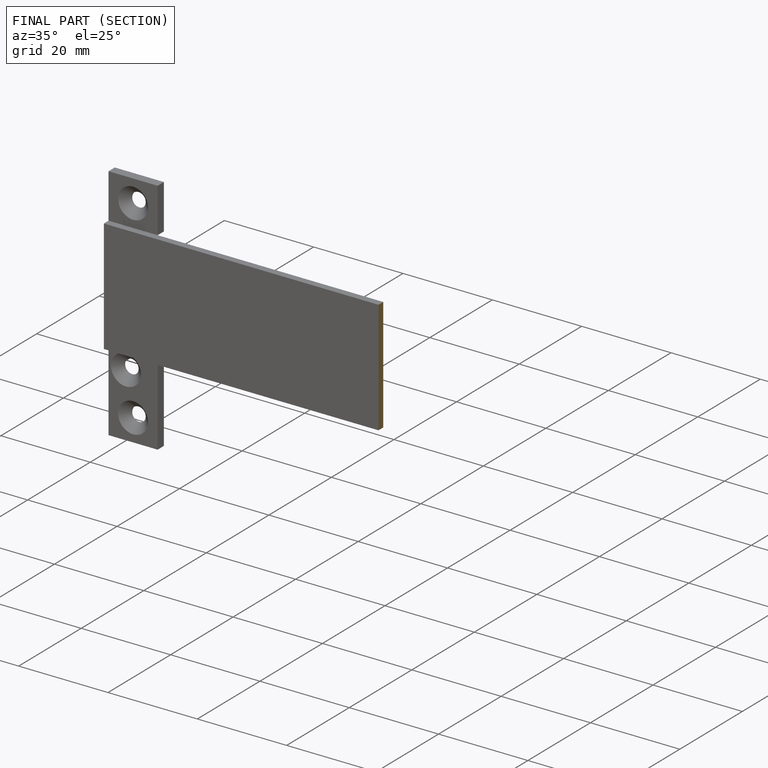
[diagram: finished part — half-section view (interior)]
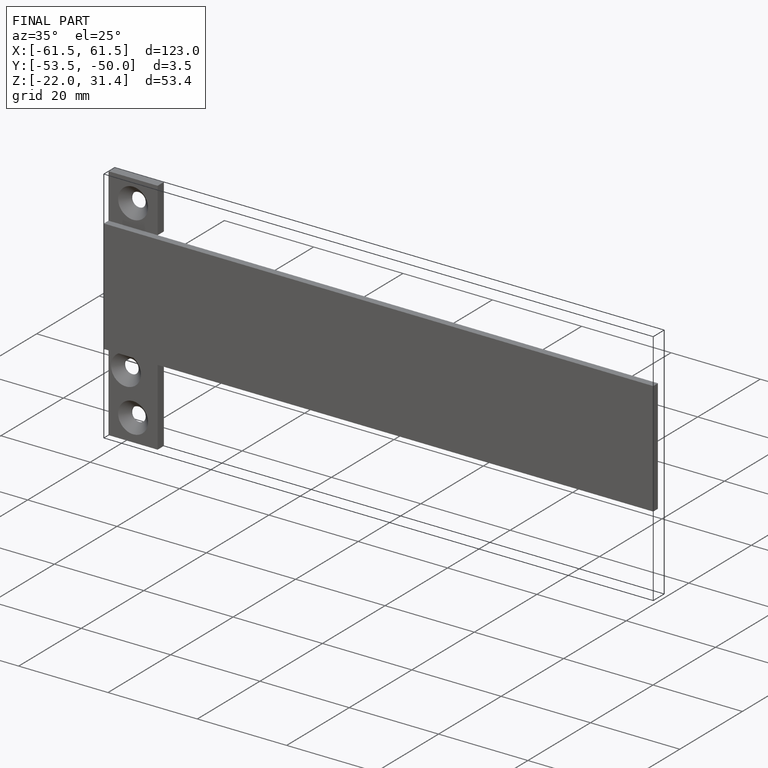
[diagram: finished part — iso view with bounding-box wireframe]
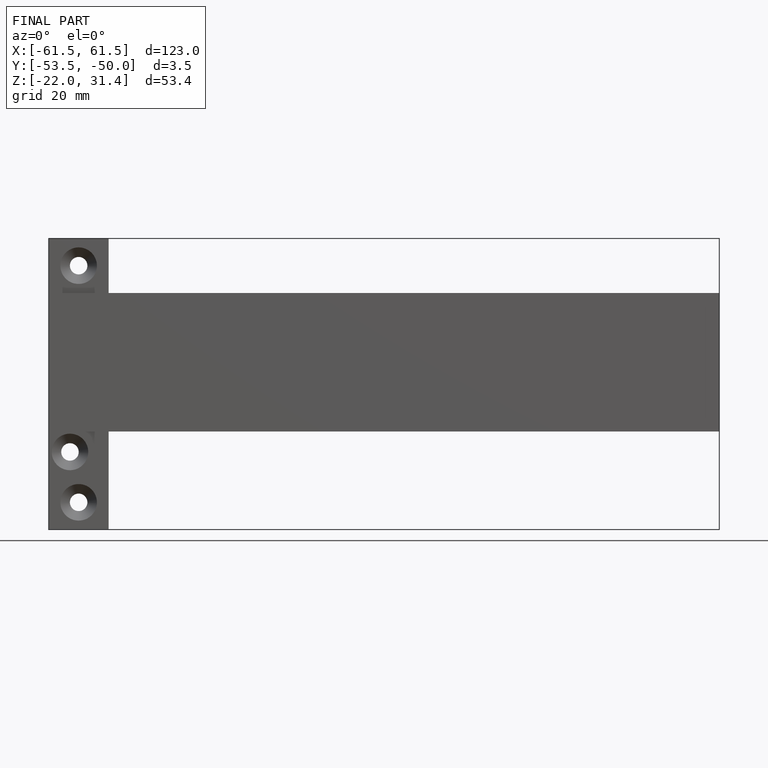
[diagram: finished part — front view with bounding-box wireframe]
